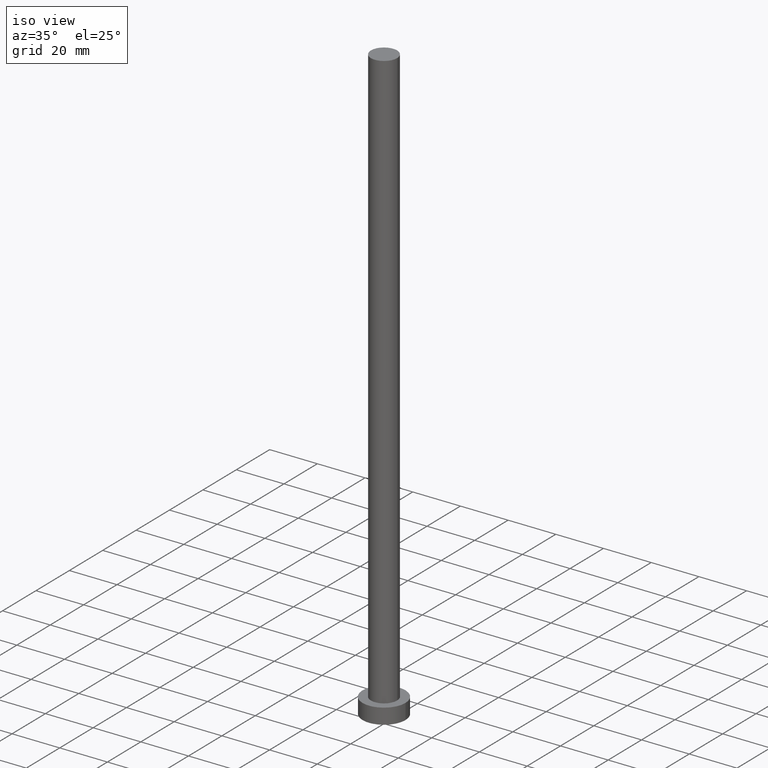
[diagram: clean part render]
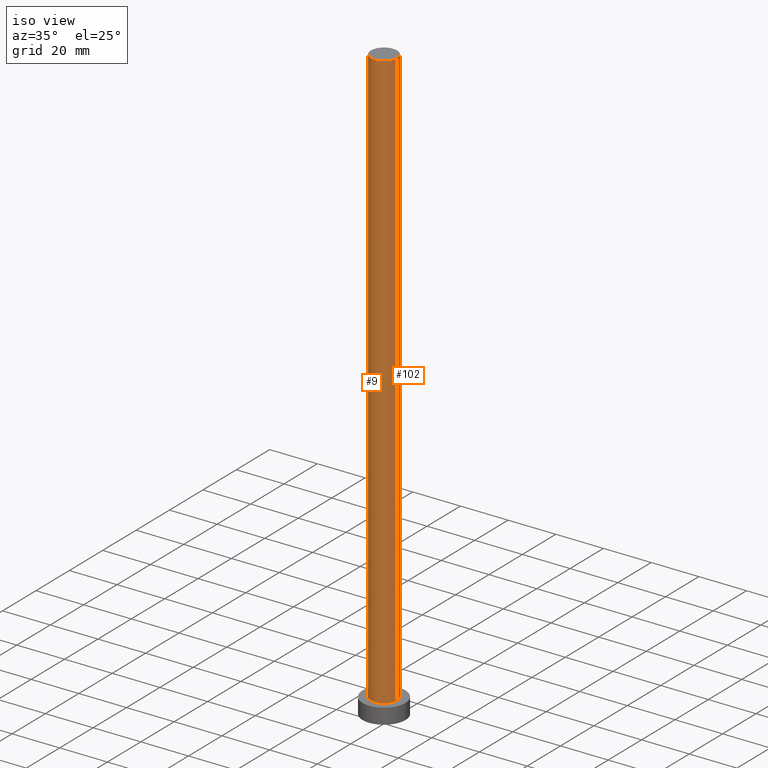
[diagram: same view with one multi-face feature highlighted, each face labeled with its STEP entity id]
A machine part, iso view. The highlighted faces form ONE feature: a constant-radius fillet chain: 2 tangent blend faces with common blend radius 5.5 mm. The faces share edges in the B-rep.
Their STEP definitions:
[1] entity #102 (Cylinder):
#24 = CARTESIAN_POINT ( 'NONE',  ( 0.000000000000000000, 0.000000000000000000, 6.500000000000000000 ) ) ;
#26 = EDGE_CURVE ( 'NONE', #56, #215, #55, .T. ) ;
#35 = CARTESIAN_POINT ( 'NONE',  ( 5.500000000000000000, 6.735557395310442023E-16, 6.500000000000000000 ) ) ;
#55 = CIRCLE ( 'NONE', #85, 5.500000000000000000 ) ;
#56 = VERTEX_POINT ( 'NONE', #128 ) ;
#58 = ORIENTED_EDGE ( 'NONE', *, *, #163, .F. ) ;
#59 = AXIS2_PLACEMENT_3D ( 'NONE', #246, #66, #123 ) ;
#66 = DIRECTION ( 'NONE',  ( -0.000000000000000000, -0.000000000000000000, -1.000000000000000000 ) ) ;
#75 = DIRECTION ( 'NONE',  ( -0.000000000000000000, -0.000000000000000000, -1.000000000000000000 ) ) ;
#76 = VECTOR ( 'NONE', #224, 1000.000000000000000 ) ;
#78 = EDGE_LOOP ( 'NONE', ( #222, #113, #232, #58 ) ) ;
#84 = DIRECTION ( 'NONE',  ( 1.000000000000000000, 0.000000000000000000, 0.000000000000000000 ) ) ;
#85 = AXIS2_PLACEMENT_3D ( 'NONE', #149, #105, #84 ) ;
#102 = ADVANCED_FACE ( 'NONE', ( #247 ), #171, .T. ) ;
#105 = DIRECTION ( 'NONE',  ( 0.000000000000000000, 0.000000000000000000, 1.000000000000000000 ) ) ;
#113 = ORIENTED_EDGE ( 'NONE', *, *, #122, .T. ) ;
#117 = LINE ( 'NONE', #239, #248 ) ;
#121 = CARTESIAN_POINT ( 'NONE',  ( -5.500000000000000000, 0.000000000000000000, 250.0000000000000000 ) ) ;
#122 = EDGE_CURVE ( 'NONE', #56, #236, #251, .T. ) ;
#123 = DIRECTION ( 'NONE',  ( -1.000000000000000000, 0.000000000000000000, 0.000000000000000000 ) ) ;
#124 = CIRCLE ( 'NONE', #137, 5.500000000000000000 ) ;
#125 = CARTESIAN_POINT ( 'NONE',  ( -5.500000000000000000, 0.000000000000000000, 6.500000000000000000 ) ) ;
#128 = CARTESIAN_POINT ( 'NONE',  ( 5.500000000000000000, 6.735557395310442023E-16, 250.0000000000000000 ) ) ;
#137 = AXIS2_PLACEMENT_3D ( 'NONE', #24, #139, #158 ) ;
#139 = DIRECTION ( 'NONE',  ( 0.000000000000000000, 0.000000000000000000, 1.000000000000000000 ) ) ;
#144 = CARTESIAN_POINT ( 'NONE',  ( 5.500000000000000000, 6.735557395310442023E-16, 250.0000000000000000 ) ) ;
#149 = CARTESIAN_POINT ( 'NONE',  ( 0.000000000000000000, 0.000000000000000000, 250.0000000000000000 ) ) ;
#152 = EDGE_CURVE ( 'NONE', #236, #199, #124, .T. ) ;
#158 = DIRECTION ( 'NONE',  ( 1.000000000000000000, 0.000000000000000000, 0.000000000000000000 ) ) ;
#163 = EDGE_CURVE ( 'NONE', #215, #199, #117, .T. ) ;
#171 = CYLINDRICAL_SURFACE ( 'NONE', #59, 5.500000000000000000 ) ;
#199 = VERTEX_POINT ( 'NONE', #125 ) ;
#215 = VERTEX_POINT ( 'NONE', #121 ) ;
#222 = ORIENTED_EDGE ( 'NONE', *, *, #26, .F. ) ;
#224 = DIRECTION ( 'NONE',  ( -0.000000000000000000, -0.000000000000000000, -1.000000000000000000 ) ) ;
#232 = ORIENTED_EDGE ( 'NONE', *, *, #152, .T. ) ;
#236 = VERTEX_POINT ( 'NONE', #35 ) ;
#239 = CARTESIAN_POINT ( 'NONE',  ( -5.500000000000000000, 0.000000000000000000, 250.0000000000000000 ) ) ;
#246 = CARTESIAN_POINT ( 'NONE',  ( 0.000000000000000000, 0.000000000000000000, 250.0000000000000000 ) ) ;
#247 = FACE_OUTER_BOUND ( 'NONE', #78, .T. ) ;
#248 = VECTOR ( 'NONE', #75, 1000.000000000000000 ) ;
#251 = LINE ( 'NONE', #144, #76 ) ;
[2] entity #9 (Cylinder):
#8 = CIRCLE ( 'NONE', #146, 5.500000000000000000 ) ;
#9 = ADVANCED_FACE ( 'NONE', ( #107 ), #130, .T. ) ;
#16 = CARTESIAN_POINT ( 'NONE',  ( 0.000000000000000000, 0.000000000000000000, 6.500000000000000000 ) ) ;
#18 = DIRECTION ( 'NONE',  ( 1.000000000000000000, 0.000000000000000000, 0.000000000000000000 ) ) ;
#35 = CARTESIAN_POINT ( 'NONE',  ( 5.500000000000000000, 6.735557395310442023E-16, 6.500000000000000000 ) ) ;
#40 = ORIENTED_EDGE ( 'NONE', *, *, #219, .T. ) ;
#47 = DIRECTION ( 'NONE',  ( -0.000000000000000000, -0.000000000000000000, -1.000000000000000000 ) ) ;
#54 = DIRECTION ( 'NONE',  ( 0.000000000000000000, 0.000000000000000000, 1.000000000000000000 ) ) ;
#56 = VERTEX_POINT ( 'NONE', #128 ) ;
#65 = DIRECTION ( 'NONE',  ( 1.000000000000000000, 0.000000000000000000, 0.000000000000000000 ) ) ;
#71 = CARTESIAN_POINT ( 'NONE',  ( 0.000000000000000000, 0.000000000000000000, 250.0000000000000000 ) ) ;
#75 = DIRECTION ( 'NONE',  ( -0.000000000000000000, -0.000000000000000000, -1.000000000000000000 ) ) ;
#76 = VECTOR ( 'NONE', #224, 1000.000000000000000 ) ;
#80 = DIRECTION ( 'NONE',  ( 0.000000000000000000, 0.000000000000000000, 1.000000000000000000 ) ) ;
#81 = DIRECTION ( 'NONE',  ( -1.000000000000000000, 0.000000000000000000, 0.000000000000000000 ) ) ;
#97 = EDGE_LOOP ( 'NONE', ( #116, #191, #154, #40 ) ) ;
#107 = FACE_OUTER_BOUND ( 'NONE', #97, .T. ) ;
#116 = ORIENTED_EDGE ( 'NONE', *, *, #122, .F. ) ;
#117 = LINE ( 'NONE', #239, #248 ) ;
#121 = CARTESIAN_POINT ( 'NONE',  ( -5.500000000000000000, 0.000000000000000000, 250.0000000000000000 ) ) ;
#122 = EDGE_CURVE ( 'NONE', #56, #236, #251, .T. ) ;
#125 = CARTESIAN_POINT ( 'NONE',  ( -5.500000000000000000, 0.000000000000000000, 6.500000000000000000 ) ) ;
#128 = CARTESIAN_POINT ( 'NONE',  ( 5.500000000000000000, 6.735557395310442023E-16, 250.0000000000000000 ) ) ;
#130 = CYLINDRICAL_SURFACE ( 'NONE', #243, 5.500000000000000000 ) ;
#144 = CARTESIAN_POINT ( 'NONE',  ( 5.500000000000000000, 6.735557395310442023E-16, 250.0000000000000000 ) ) ;
#146 = AXIS2_PLACEMENT_3D ( 'NONE', #16, #80, #65 ) ;
#154 = ORIENTED_EDGE ( 'NONE', *, *, #163, .T. ) ;
#163 = EDGE_CURVE ( 'NONE', #215, #199, #117, .T. ) ;
#191 = ORIENTED_EDGE ( 'NONE', *, *, #254, .F. ) ;
#199 = VERTEX_POINT ( 'NONE', #125 ) ;
#201 = CIRCLE ( 'NONE', #223, 5.500000000000000000 ) ;
#213 = CARTESIAN_POINT ( 'NONE',  ( 0.000000000000000000, 0.000000000000000000, 250.0000000000000000 ) ) ;
#215 = VERTEX_POINT ( 'NONE', #121 ) ;
#219 = EDGE_CURVE ( 'NONE', #199, #236, #8, .T. ) ;
#223 = AXIS2_PLACEMENT_3D ( 'NONE', #213, #54, #18 ) ;
#224 = DIRECTION ( 'NONE',  ( -0.000000000000000000, -0.000000000000000000, -1.000000000000000000 ) ) ;
#236 = VERTEX_POINT ( 'NONE', #35 ) ;
#239 = CARTESIAN_POINT ( 'NONE',  ( -5.500000000000000000, 0.000000000000000000, 250.0000000000000000 ) ) ;
#243 = AXIS2_PLACEMENT_3D ( 'NONE', #71, #47, #81 ) ;
#248 = VECTOR ( 'NONE', #75, 1000.000000000000000 ) ;
#251 = LINE ( 'NONE', #144, #76 ) ;
#254 = EDGE_CURVE ( 'NONE', #215, #56, #201, .T. ) ;